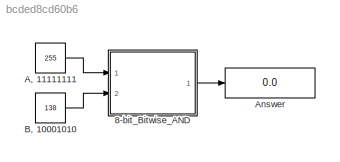
MODEL slx_bcded8cd60b6
KIND model
CONFIG AbsTol = auto
CONFIG EnableMultiTasking = off
CONFIG FixedStep = 1
CONFIG MaxStep = auto
CONFIG MinStep = auto
CONFIG RelTol = 1e-3
CONFIG SampleTimeConstraint = Unconstrained
CONFIG Solver = FixedStepDiscrete
CONFIG SolverName = FixedStepDiscrete
CONFIG StartTime = 0.0
CONFIG StopTime = 10.0
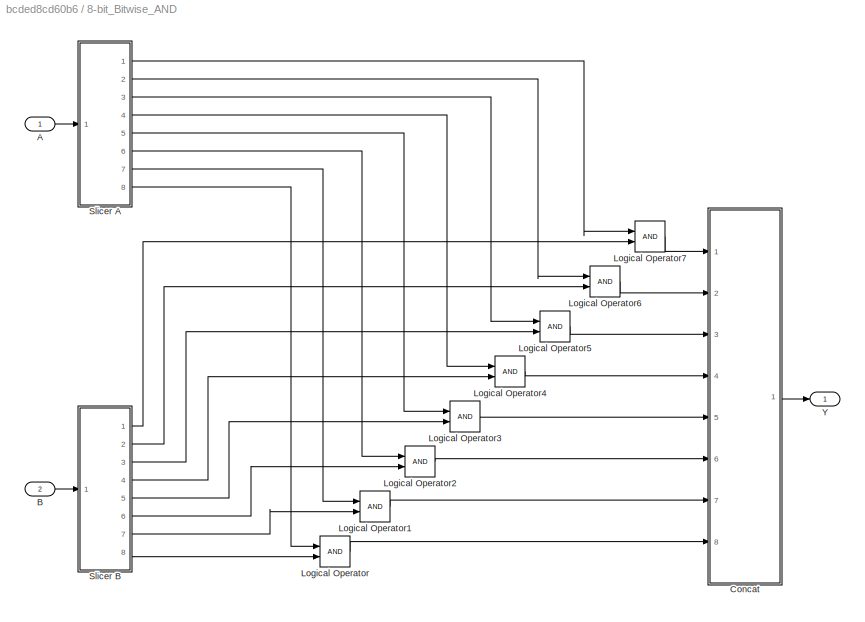
BLOCK [SubSystem] 8-bit_Bitwise_AND
  Ports = [2, 1]
  RequestExecContextInheritance = off
BLOCK [Inport] 8-bit_Bitwise_AND/A
  IconDisplay = Port number
  OutDataTypeStr = uint8
BLOCK [Inport] 8-bit_Bitwise_AND/B
  IconDisplay = Port number
  OutDataTypeStr = uint8
  Port = 2
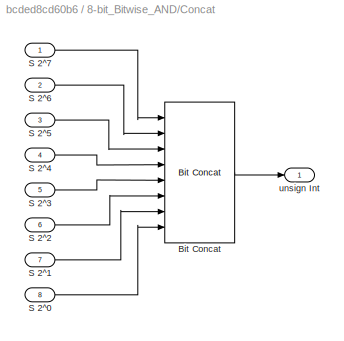
BLOCK [SubSystem] 8-bit_Bitwise_AND/Concat
  Ports = [8, 1]
  RequestExecContextInheritance = off
BLOCK [Reference] 8-bit_Bitwise_AND/Concat/Bit Concat  REF=hdlsllib/Logic and Bit
Operations/Bit Concat
  Ports = [8, 1]
  SourceBlock = hdlsllib/Logic and Bit\nOperations/Bit Concat
  SourceProductBaseCode = HD
  SourceProductName = HDL Coder
  SourceType = Bit Concat
BLOCK [Inport] 8-bit_Bitwise_AND/Concat/S 2^0
  IconDisplay = Port number
  Port = 8
BLOCK [Inport] 8-bit_Bitwise_AND/Concat/S 2^1
  IconDisplay = Port number
  Port = 7
BLOCK [Inport] 8-bit_Bitwise_AND/Concat/S 2^2
  IconDisplay = Port number
  Port = 6
BLOCK [Inport] 8-bit_Bitwise_AND/Concat/S 2^3
  IconDisplay = Port number
  Port = 5
BLOCK [Inport] 8-bit_Bitwise_AND/Concat/S 2^4
  IconDisplay = Port number
  Port = 4
BLOCK [Inport] 8-bit_Bitwise_AND/Concat/S 2^5
  IconDisplay = Port number
  Port = 3
BLOCK [Inport] 8-bit_Bitwise_AND/Concat/S 2^6
  IconDisplay = Port number
  Port = 2
BLOCK [Inport] 8-bit_Bitwise_AND/Concat/S 2^7
  IconDisplay = Port number
BLOCK [Outport] 8-bit_Bitwise_AND/Concat/unsign Int
  IconDisplay = Port number
BLOCK [Logic] 8-bit_Bitwise_AND/Logical Operator
  AllPortsSameDT = off
  OutDataTypeStr = boolean
  Ports = [2, 1]
BLOCK [Logic] 8-bit_Bitwise_AND/Logical Operator1
  AllPortsSameDT = off
  OutDataTypeStr = boolean
  Ports = [2, 1]
BLOCK [Logic] 8-bit_Bitwise_AND/Logical Operator2
  AllPortsSameDT = off
  OutDataTypeStr = boolean
  Ports = [2, 1]
BLOCK [Logic] 8-bit_Bitwise_AND/Logical Operator3
  AllPortsSameDT = off
  OutDataTypeStr = boolean
  Ports = [2, 1]
BLOCK [Logic] 8-bit_Bitwise_AND/Logical Operator4
  AllPortsSameDT = off
  OutDataTypeStr = boolean
  Ports = [2, 1]
BLOCK [Logic] 8-bit_Bitwise_AND/Logical Operator5
  AllPortsSameDT = off
  OutDataTypeStr = boolean
  Ports = [2, 1]
BLOCK [Logic] 8-bit_Bitwise_AND/Logical Operator6
  AllPortsSameDT = off
  OutDataTypeStr = boolean
  Ports = [2, 1]
BLOCK [Logic] 8-bit_Bitwise_AND/Logical Operator7
  AllPortsSameDT = off
  OutDataTypeStr = boolean
  Ports = [2, 1]
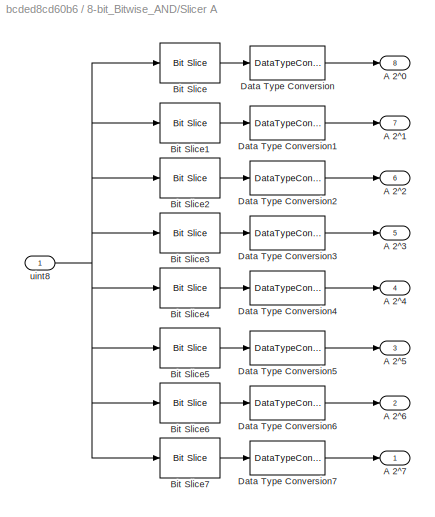
BLOCK [SubSystem] 8-bit_Bitwise_AND/Slicer A
  Ports = [1, 8]
  RequestExecContextInheritance = off
BLOCK [Outport] 8-bit_Bitwise_AND/Slicer A/A 2^0 
  IconDisplay = Port number
  Port = 8
BLOCK [Outport] 8-bit_Bitwise_AND/Slicer A/A 2^1
  IconDisplay = Port number
  Port = 7
BLOCK [Outport] 8-bit_Bitwise_AND/Slicer A/A 2^2
  IconDisplay = Port number
  Port = 6
BLOCK [Outport] 8-bit_Bitwise_AND/Slicer A/A 2^3
  IconDisplay = Port number
  Port = 5
BLOCK [Outport] 8-bit_Bitwise_AND/Slicer A/A 2^4
  IconDisplay = Port number
  Port = 4
BLOCK [Outport] 8-bit_Bitwise_AND/Slicer A/A 2^5
  IconDisplay = Port number
  Port = 3
BLOCK [Outport] 8-bit_Bitwise_AND/Slicer A/A 2^6
  IconDisplay = Port number
  Port = 2
BLOCK [Outport] 8-bit_Bitwise_AND/Slicer A/A 2^7
  IconDisplay = Port number
BLOCK [Reference] 8-bit_Bitwise_AND/Slicer A/Bit Slice  REF=hdlsllib/Logic and Bit
Operations/Bit Slice
  Ports = [1, 1]
  SourceBlock = hdlsllib/Logic and Bit\nOperations/Bit Slice
  SourceProductBaseCode = HD
  SourceProductName = HDL Coder
  SourceType = Bit Slice
BLOCK [Reference] 8-bit_Bitwise_AND/Slicer A/Bit Slice1  REF=hdlsllib/Logic and Bit
Operations/Bit Slice
  Ports = [1, 1]
  SourceBlock = hdlsllib/Logic and Bit\nOperations/Bit Slice
  SourceProductBaseCode = HD
  SourceProductName = HDL Coder
  SourceType = Bit Slice
BLOCK [Reference] 8-bit_Bitwise_AND/Slicer A/Bit Slice2  REF=hdlsllib/Logic and Bit
Operations/Bit Slice
  Ports = [1, 1]
  SourceBlock = hdlsllib/Logic and Bit\nOperations/Bit Slice
  SourceProductBaseCode = HD
  SourceProductName = HDL Coder
  SourceType = Bit Slice
BLOCK [Reference] 8-bit_Bitwise_AND/Slicer A/Bit Slice3  REF=hdlsllib/Logic and Bit
Operations/Bit Slice
  Ports = [1, 1]
  SourceBlock = hdlsllib/Logic and Bit\nOperations/Bit Slice
  SourceProductBaseCode = HD
  SourceProductName = HDL Coder
  SourceType = Bit Slice
BLOCK [Reference] 8-bit_Bitwise_AND/Slicer A/Bit Slice4  REF=hdlsllib/Logic and Bit
Operations/Bit Slice
  Ports = [1, 1]
  SourceBlock = hdlsllib/Logic and Bit\nOperations/Bit Slice
  SourceProductBaseCode = HD
  SourceProductName = HDL Coder
  SourceType = Bit Slice
BLOCK [Reference] 8-bit_Bitwise_AND/Slicer A/Bit Slice5  REF=hdlsllib/Logic and Bit
Operations/Bit Slice
  Ports = [1, 1]
  SourceBlock = hdlsllib/Logic and Bit\nOperations/Bit Slice
  SourceProductBaseCode = HD
  SourceProductName = HDL Coder
  SourceType = Bit Slice
BLOCK [Reference] 8-bit_Bitwise_AND/Slicer A/Bit Slice6  REF=hdlsllib/Logic and Bit
Operations/Bit Slice
  Ports = [1, 1]
  SourceBlock = hdlsllib/Logic and Bit\nOperations/Bit Slice
  SourceProductBaseCode = HD
  SourceProductName = HDL Coder
  SourceType = Bit Slice
BLOCK [Reference] 8-bit_Bitwise_AND/Slicer A/Bit Slice7  REF=hdlsllib/Logic and Bit
Operations/Bit Slice
  Ports = [1, 1]
  SourceBlock = hdlsllib/Logic and Bit\nOperations/Bit Slice
  SourceProductBaseCode = HD
  SourceProductName = HDL Coder
  SourceType = Bit Slice
BLOCK [DataTypeConversion] 8-bit_Bitwise_AND/Slicer A/Data Type Conversion
  OutDataTypeStr = boolean
  RndMeth = Floor
  SaturateOnIntegerOverflow = off
BLOCK [DataTypeConversion] 8-bit_Bitwise_AND/Slicer A/Data Type Conversion1
  OutDataTypeStr = boolean
  RndMeth = Floor
  SaturateOnIntegerOverflow = off
BLOCK [DataTypeConversion] 8-bit_Bitwise_AND/Slicer A/Data Type Conversion2
  OutDataTypeStr = boolean
  RndMeth = Floor
  SaturateOnIntegerOverflow = off
BLOCK [DataTypeConversion] 8-bit_Bitwise_AND/Slicer A/Data Type Conversion3
  OutDataTypeStr = boolean
  RndMeth = Floor
  SaturateOnIntegerOverflow = off
BLOCK [DataTypeConversion] 8-bit_Bitwise_AND/Slicer A/Data Type Conversion4
  OutDataTypeStr = boolean
  RndMeth = Floor
  SaturateOnIntegerOverflow = off
BLOCK [DataTypeConversion] 8-bit_Bitwise_AND/Slicer A/Data Type Conversion5
  OutDataTypeStr = boolean
  RndMeth = Floor
  SaturateOnIntegerOverflow = off
BLOCK [DataTypeConversion] 8-bit_Bitwise_AND/Slicer A/Data Type Conversion6
  OutDataTypeStr = boolean
  RndMeth = Floor
  SaturateOnIntegerOverflow = off
BLOCK [DataTypeConversion] 8-bit_Bitwise_AND/Slicer A/Data Type Conversion7
  OutDataTypeStr = boolean
  RndMeth = Floor
  SaturateOnIntegerOverflow = off
BLOCK [Inport] 8-bit_Bitwise_AND/Slicer A/uint8
  IconDisplay = Port number
  OutDataTypeStr = uint8
  SampleTime = 1
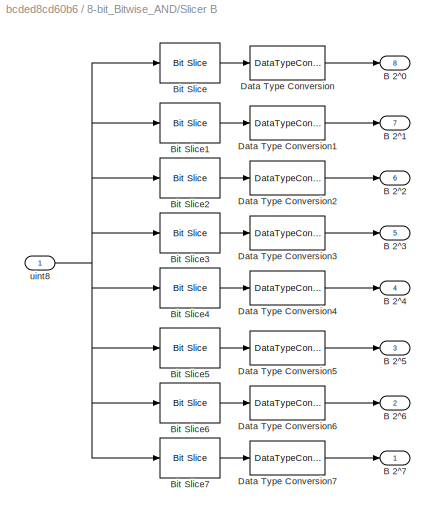
BLOCK [SubSystem] 8-bit_Bitwise_AND/Slicer B
  Ports = [1, 8]
  RequestExecContextInheritance = off
BLOCK [Outport] 8-bit_Bitwise_AND/Slicer B/B 2^0 
  IconDisplay = Port number
  Port = 8
BLOCK [Outport] 8-bit_Bitwise_AND/Slicer B/B 2^1
  IconDisplay = Port number
  Port = 7
BLOCK [Outport] 8-bit_Bitwise_AND/Slicer B/B 2^2
  IconDisplay = Port number
  Port = 6
BLOCK [Outport] 8-bit_Bitwise_AND/Slicer B/B 2^3
  IconDisplay = Port number
  Port = 5
BLOCK [Outport] 8-bit_Bitwise_AND/Slicer B/B 2^4
  IconDisplay = Port number
  Port = 4
BLOCK [Outport] 8-bit_Bitwise_AND/Slicer B/B 2^5
  IconDisplay = Port number
  Port = 3
BLOCK [Outport] 8-bit_Bitwise_AND/Slicer B/B 2^6
  IconDisplay = Port number
  Port = 2
BLOCK [Outport] 8-bit_Bitwise_AND/Slicer B/B 2^7
  IconDisplay = Port number
BLOCK [Reference] 8-bit_Bitwise_AND/Slicer B/Bit Slice  REF=hdlsllib/Logic and Bit
Operations/Bit Slice
  Ports = [1, 1]
  SourceBlock = hdlsllib/Logic and Bit\nOperations/Bit Slice
  SourceProductBaseCode = HD
  SourceProductName = HDL Coder
  SourceType = Bit Slice
BLOCK [Reference] 8-bit_Bitwise_AND/Slicer B/Bit Slice1  REF=hdlsllib/Logic and Bit
Operations/Bit Slice
  Ports = [1, 1]
  SourceBlock = hdlsllib/Logic and Bit\nOperations/Bit Slice
  SourceProductBaseCode = HD
  SourceProductName = HDL Coder
  SourceType = Bit Slice
BLOCK [Reference] 8-bit_Bitwise_AND/Slicer B/Bit Slice2  REF=hdlsllib/Logic and Bit
Operations/Bit Slice
  Ports = [1, 1]
  SourceBlock = hdlsllib/Logic and Bit\nOperations/Bit Slice
  SourceProductBaseCode = HD
  SourceProductName = HDL Coder
  SourceType = Bit Slice
BLOCK [Reference] 8-bit_Bitwise_AND/Slicer B/Bit Slice3  REF=hdlsllib/Logic and Bit
Operations/Bit Slice
  Ports = [1, 1]
  SourceBlock = hdlsllib/Logic and Bit\nOperations/Bit Slice
  SourceProductBaseCode = HD
  SourceProductName = HDL Coder
  SourceType = Bit Slice
BLOCK [Reference] 8-bit_Bitwise_AND/Slicer B/Bit Slice4  REF=hdlsllib/Logic and Bit
Operations/Bit Slice
  Ports = [1, 1]
  SourceBlock = hdlsllib/Logic and Bit\nOperations/Bit Slice
  SourceProductBaseCode = HD
  SourceProductName = HDL Coder
  SourceType = Bit Slice
BLOCK [Reference] 8-bit_Bitwise_AND/Slicer B/Bit Slice5  REF=hdlsllib/Logic and Bit
Operations/Bit Slice
  Ports = [1, 1]
  SourceBlock = hdlsllib/Logic and Bit\nOperations/Bit Slice
  SourceProductBaseCode = HD
  SourceProductName = HDL Coder
  SourceType = Bit Slice
BLOCK [Reference] 8-bit_Bitwise_AND/Slicer B/Bit Slice6  REF=hdlsllib/Logic and Bit
Operations/Bit Slice
  Ports = [1, 1]
  SourceBlock = hdlsllib/Logic and Bit\nOperations/Bit Slice
  SourceProductBaseCode = HD
  SourceProductName = HDL Coder
  SourceType = Bit Slice
BLOCK [Reference] 8-bit_Bitwise_AND/Slicer B/Bit Slice7  REF=hdlsllib/Logic and Bit
Operations/Bit Slice
  Ports = [1, 1]
  SourceBlock = hdlsllib/Logic and Bit\nOperations/Bit Slice
  SourceProductBaseCode = HD
  SourceProductName = HDL Coder
  SourceType = Bit Slice
BLOCK [DataTypeConversion] 8-bit_Bitwise_AND/Slicer B/Data Type Conversion
  OutDataTypeStr = boolean
  RndMeth = Floor
  SaturateOnIntegerOverflow = off
BLOCK [DataTypeConversion] 8-bit_Bitwise_AND/Slicer B/Data Type Conversion1
  OutDataTypeStr = boolean
  RndMeth = Floor
  SaturateOnIntegerOverflow = off
BLOCK [DataTypeConversion] 8-bit_Bitwise_AND/Slicer B/Data Type Conversion2
  OutDataTypeStr = boolean
  RndMeth = Floor
  SaturateOnIntegerOverflow = off
BLOCK [DataTypeConversion] 8-bit_Bitwise_AND/Slicer B/Data Type Conversion3
  OutDataTypeStr = boolean
  RndMeth = Floor
  SaturateOnIntegerOverflow = off
BLOCK [DataTypeConversion] 8-bit_Bitwise_AND/Slicer B/Data Type Conversion4
  OutDataTypeStr = boolean
  RndMeth = Floor
  SaturateOnIntegerOverflow = off
BLOCK [DataTypeConversion] 8-bit_Bitwise_AND/Slicer B/Data Type Conversion5
  OutDataTypeStr = boolean
  RndMeth = Floor
  SaturateOnIntegerOverflow = off
BLOCK [DataTypeConversion] 8-bit_Bitwise_AND/Slicer B/Data Type Conversion6
  OutDataTypeStr = boolean
  RndMeth = Floor
  SaturateOnIntegerOverflow = off
BLOCK [DataTypeConversion] 8-bit_Bitwise_AND/Slicer B/Data Type Conversion7
  OutDataTypeStr = boolean
  RndMeth = Floor
  SaturateOnIntegerOverflow = off
BLOCK [Inport] 8-bit_Bitwise_AND/Slicer B/uint8
  IconDisplay = Port number
  OutDataTypeStr = uint8
  SampleTime = 1
BLOCK [Outport] 8-bit_Bitwise_AND/Y
  IconDisplay = Port number
BLOCK [Constant] A, 11111111
  OutDataTypeStr = uint8
  SampleTime = 1
  Value = 255
BLOCK [Display] Answer
  Decimation = 1
  Ports = [1]
BLOCK [Constant] B, 10001010
  OutDataTypeStr = uint8
  SampleTime = 1
  Value = 138
LINE 8-bit_Bitwise_AND/A:1 -> 8-bit_Bitwise_AND/Slicer A:1
LINE 8-bit_Bitwise_AND/B:1 -> 8-bit_Bitwise_AND/Slicer B:1
LINE 8-bit_Bitwise_AND/Concat/Bit Concat:1 -> 8-bit_Bitwise_AND/Concat/unsign Int:1
LINE 8-bit_Bitwise_AND/Concat/S 2^0:1 -> 8-bit_Bitwise_AND/Concat/Bit Concat:8
LINE 8-bit_Bitwise_AND/Concat/S 2^1:1 -> 8-bit_Bitwise_AND/Concat/Bit Concat:7
LINE 8-bit_Bitwise_AND/Concat/S 2^2:1 -> 8-bit_Bitwise_AND/Concat/Bit Concat:6
LINE 8-bit_Bitwise_AND/Concat/S 2^3:1 -> 8-bit_Bitwise_AND/Concat/Bit Concat:5
LINE 8-bit_Bitwise_AND/Concat/S 2^4:1 -> 8-bit_Bitwise_AND/Concat/Bit Concat:4
LINE 8-bit_Bitwise_AND/Concat/S 2^5:1 -> 8-bit_Bitwise_AND/Concat/Bit Concat:3
LINE 8-bit_Bitwise_AND/Concat/S 2^6:1 -> 8-bit_Bitwise_AND/Concat/Bit Concat:2
LINE 8-bit_Bitwise_AND/Concat/S 2^7:1 -> 8-bit_Bitwise_AND/Concat/Bit Concat:1
LINE 8-bit_Bitwise_AND/Concat:1 -> 8-bit_Bitwise_AND/Y:1
LINE 8-bit_Bitwise_AND/Logical Operator1:1 -> 8-bit_Bitwise_AND/Concat:7
LINE 8-bit_Bitwise_AND/Logical Operator2:1 -> 8-bit_Bitwise_AND/Concat:6
LINE 8-bit_Bitwise_AND/Logical Operator3:1 -> 8-bit_Bitwise_AND/Concat:5
LINE 8-bit_Bitwise_AND/Logical Operator4:1 -> 8-bit_Bitwise_AND/Concat:4
LINE 8-bit_Bitwise_AND/Logical Operator5:1 -> 8-bit_Bitwise_AND/Concat:3
LINE 8-bit_Bitwise_AND/Logical Operator6:1 -> 8-bit_Bitwise_AND/Concat:2
LINE 8-bit_Bitwise_AND/Logical Operator7:1 -> 8-bit_Bitwise_AND/Concat:1
LINE 8-bit_Bitwise_AND/Logical Operator:1 -> 8-bit_Bitwise_AND/Concat:8
LINE 8-bit_Bitwise_AND/Slicer A/Bit Slice1:1 -> 8-bit_Bitwise_AND/Slicer A/Data Type Conversion1:1
LINE 8-bit_Bitwise_AND/Slicer A/Bit Slice2:1 -> 8-bit_Bitwise_AND/Slicer A/Data Type Conversion2:1
LINE 8-bit_Bitwise_AND/Slicer A/Bit Slice3:1 -> 8-bit_Bitwise_AND/Slicer A/Data Type Conversion3:1
LINE 8-bit_Bitwise_AND/Slicer A/Bit Slice4:1 -> 8-bit_Bitwise_AND/Slicer A/Data Type Conversion4:1
LINE 8-bit_Bitwise_AND/Slicer A/Bit Slice5:1 -> 8-bit_Bitwise_AND/Slicer A/Data Type Conversion5:1
LINE 8-bit_Bitwise_AND/Slicer A/Bit Slice6:1 -> 8-bit_Bitwise_AND/Slicer A/Data Type Conversion6:1
LINE 8-bit_Bitwise_AND/Slicer A/Bit Slice7:1 -> 8-bit_Bitwise_AND/Slicer A/Data Type Conversion7:1
LINE 8-bit_Bitwise_AND/Slicer A/Bit Slice:1 -> 8-bit_Bitwise_AND/Slicer A/Data Type Conversion:1
LINE 8-bit_Bitwise_AND/Slicer A/Data Type Conversion1:1 -> 8-bit_Bitwise_AND/Slicer A/A 2^1:1
LINE 8-bit_Bitwise_AND/Slicer A/Data Type Conversion2:1 -> 8-bit_Bitwise_AND/Slicer A/A 2^2:1
LINE 8-bit_Bitwise_AND/Slicer A/Data Type Conversion3:1 -> 8-bit_Bitwise_AND/Slicer A/A 2^3:1
LINE 8-bit_Bitwise_AND/Slicer A/Data Type Conversion4:1 -> 8-bit_Bitwise_AND/Slicer A/A 2^4:1
LINE 8-bit_Bitwise_AND/Slicer A/Data Type Conversion5:1 -> 8-bit_Bitwise_AND/Slicer A/A 2^5:1
LINE 8-bit_Bitwise_AND/Slicer A/Data Type Conversion6:1 -> 8-bit_Bitwise_AND/Slicer A/A 2^6:1
LINE 8-bit_Bitwise_AND/Slicer A/Data Type Conversion7:1 -> 8-bit_Bitwise_AND/Slicer A/A 2^7:1
LINE 8-bit_Bitwise_AND/Slicer A/Data Type Conversion:1 -> 8-bit_Bitwise_AND/Slicer A/A 2^0 :1
NET 8-bit_Bitwise_AND/Slicer A/uint8:1 -> 8-bit_Bitwise_AND/Slicer A/Bit Slice1:1, 8-bit_Bitwise_AND/Slicer A/Bit Slice2:1, 8-bit_Bitwise_AND/Slicer A/Bit Slice3:1, 8-bit_Bitwise_AND/Slicer A/Bit Slice4:1, 8-bit_Bitwise_AND/Slicer A/Bit Slice5:1, 8-bit_Bitwise_AND/Slicer A/Bit Slice6:1, 8-bit_Bitwise_AND/Slicer A/Bit Slice7:1, 8-bit_Bitwise_AND/Slicer A/Bit Slice:1
LINE 8-bit_Bitwise_AND/Slicer A:1 -> 8-bit_Bitwise_AND/Logical Operator7:1
LINE 8-bit_Bitwise_AND/Slicer A:2 -> 8-bit_Bitwise_AND/Logical Operator6:1
LINE 8-bit_Bitwise_AND/Slicer A:3 -> 8-bit_Bitwise_AND/Logical Operator5:1
LINE 8-bit_Bitwise_AND/Slicer A:4 -> 8-bit_Bitwise_AND/Logical Operator4:1
LINE 8-bit_Bitwise_AND/Slicer A:5 -> 8-bit_Bitwise_AND/Logical Operator3:1
LINE 8-bit_Bitwise_AND/Slicer A:6 -> 8-bit_Bitwise_AND/Logical Operator2:1
LINE 8-bit_Bitwise_AND/Slicer A:7 -> 8-bit_Bitwise_AND/Logical Operator1:1
LINE 8-bit_Bitwise_AND/Slicer A:8 -> 8-bit_Bitwise_AND/Logical Operator:1
LINE 8-bit_Bitwise_AND/Slicer B/Bit Slice1:1 -> 8-bit_Bitwise_AND/Slicer B/Data Type Conversion1:1
LINE 8-bit_Bitwise_AND/Slicer B/Bit Slice2:1 -> 8-bit_Bitwise_AND/Slicer B/Data Type Conversion2:1
LINE 8-bit_Bitwise_AND/Slicer B/Bit Slice3:1 -> 8-bit_Bitwise_AND/Slicer B/Data Type Conversion3:1
LINE 8-bit_Bitwise_AND/Slicer B/Bit Slice4:1 -> 8-bit_Bitwise_AND/Slicer B/Data Type Conversion4:1
LINE 8-bit_Bitwise_AND/Slicer B/Bit Slice5:1 -> 8-bit_Bitwise_AND/Slicer B/Data Type Conversion5:1
LINE 8-bit_Bitwise_AND/Slicer B/Bit Slice6:1 -> 8-bit_Bitwise_AND/Slicer B/Data Type Conversion6:1
LINE 8-bit_Bitwise_AND/Slicer B/Bit Slice7:1 -> 8-bit_Bitwise_AND/Slicer B/Data Type Conversion7:1
LINE 8-bit_Bitwise_AND/Slicer B/Bit Slice:1 -> 8-bit_Bitwise_AND/Slicer B/Data Type Conversion:1
LINE 8-bit_Bitwise_AND/Slicer B/Data Type Conversion1:1 -> 8-bit_Bitwise_AND/Slicer B/B 2^1:1
LINE 8-bit_Bitwise_AND/Slicer B/Data Type Conversion2:1 -> 8-bit_Bitwise_AND/Slicer B/B 2^2:1
LINE 8-bit_Bitwise_AND/Slicer B/Data Type Conversion3:1 -> 8-bit_Bitwise_AND/Slicer B/B 2^3:1
LINE 8-bit_Bitwise_AND/Slicer B/Data Type Conversion4:1 -> 8-bit_Bitwise_AND/Slicer B/B 2^4:1
LINE 8-bit_Bitwise_AND/Slicer B/Data Type Conversion5:1 -> 8-bit_Bitwise_AND/Slicer B/B 2^5:1
LINE 8-bit_Bitwise_AND/Slicer B/Data Type Conversion6:1 -> 8-bit_Bitwise_AND/Slicer B/B 2^6:1
LINE 8-bit_Bitwise_AND/Slicer B/Data Type Conversion7:1 -> 8-bit_Bitwise_AND/Slicer B/B 2^7:1
LINE 8-bit_Bitwise_AND/Slicer B/Data Type Conversion:1 -> 8-bit_Bitwise_AND/Slicer B/B 2^0 :1
NET 8-bit_Bitwise_AND/Slicer B/uint8:1 -> 8-bit_Bitwise_AND/Slicer B/Bit Slice1:1, 8-bit_Bitwise_AND/Slicer B/Bit Slice2:1, 8-bit_Bitwise_AND/Slicer B/Bit Slice3:1, 8-bit_Bitwise_AND/Slicer B/Bit Slice4:1, 8-bit_Bitwise_AND/Slicer B/Bit Slice5:1, 8-bit_Bitwise_AND/Slicer B/Bit Slice6:1, 8-bit_Bitwise_AND/Slicer B/Bit Slice7:1, 8-bit_Bitwise_AND/Slicer B/Bit Slice:1
LINE 8-bit_Bitwise_AND/Slicer B:1 -> 8-bit_Bitwise_AND/Logical Operator7:2
LINE 8-bit_Bitwise_AND/Slicer B:2 -> 8-bit_Bitwise_AND/Logical Operator6:2
LINE 8-bit_Bitwise_AND/Slicer B:3 -> 8-bit_Bitwise_AND/Logical Operator5:2
LINE 8-bit_Bitwise_AND/Slicer B:4 -> 8-bit_Bitwise_AND/Logical Operator4:2
LINE 8-bit_Bitwise_AND/Slicer B:5 -> 8-bit_Bitwise_AND/Logical Operator3:2
LINE 8-bit_Bitwise_AND/Slicer B:6 -> 8-bit_Bitwise_AND/Logical Operator2:2
LINE 8-bit_Bitwise_AND/Slicer B:7 -> 8-bit_Bitwise_AND/Logical Operator1:2
LINE 8-bit_Bitwise_AND/Slicer B:8 -> 8-bit_Bitwise_AND/Logical Operator:2
LINE 8-bit_Bitwise_AND:1 -> Answer:1
LINE A, 11111111:1 -> 8-bit_Bitwise_AND:1
LINE B, 10001010:1 -> 8-bit_Bitwise_AND:2
note: NET lines group one-source signal fan-out (src -> all destinations, sorted); 1:1 wires keep LINE
